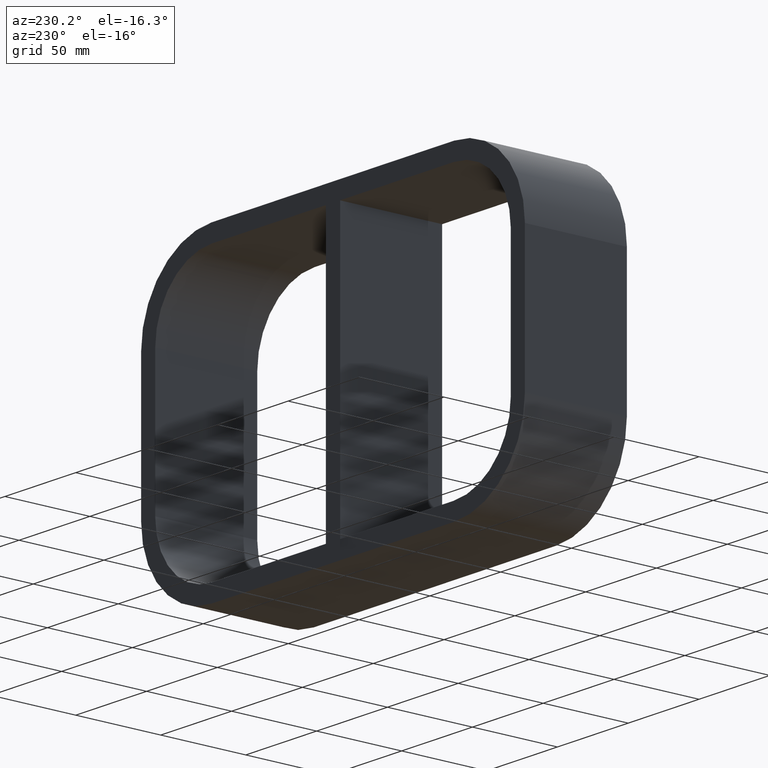
[diagram: clean part render]
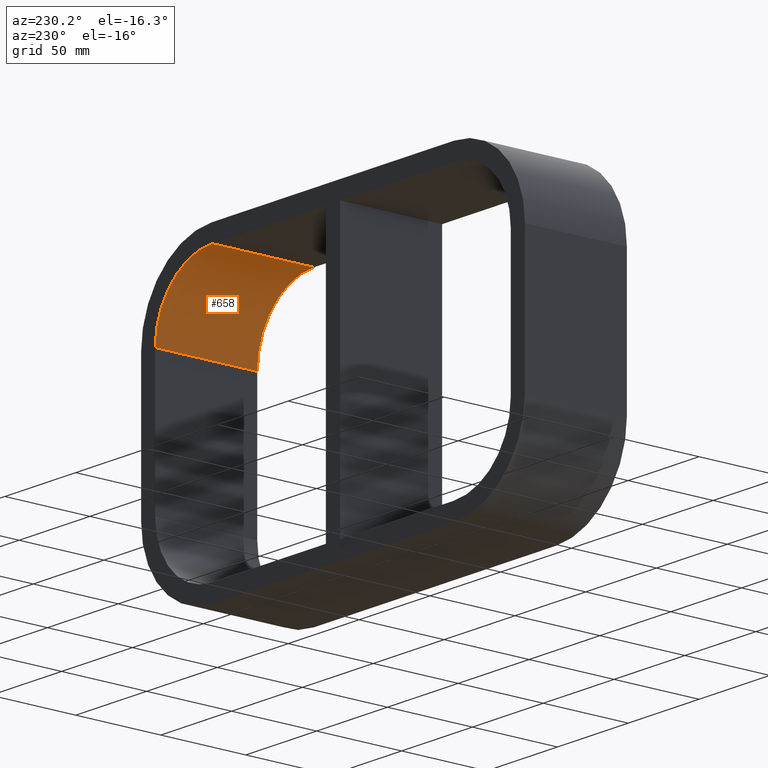
[diagram: same view with one face highlighted and labeled with its STEP entity id]
A machine part, auxiliary view. The second image highlights one B-rep face of the part: STEP entity #658.
In plain terms, the highlighted cylindrical surface (partial cylindrical patch) has radius 40 mm, axis along (0, 1, 0).
Its self-contained STEP definition (entity closure, byte-faithful):
#216=CARTESIAN_POINT('',(85.5,57.0,79.750000000000014));
#217=VERTEX_POINT('',#216);
#224=CARTESIAN_POINT('',(85.5,-3.0,79.750000000000014));
#225=VERTEX_POINT('',#224);
#226=CARTESIAN_POINT('',(85.5,-3.0,79.750000000000014));
#227=DIRECTION('',(0.0,1.0,0.0));
#228=VECTOR('',#227,60.0);
#229=LINE('',#226,#228);
#230=EDGE_CURVE('',#225,#217,#229,.T.);
#410=CARTESIAN_POINT('',(125.5,-3.0,39.750000000000014));
#411=VERTEX_POINT('',#410);
#412=CARTESIAN_POINT('',(85.5,-3.0,39.750000000000014));
#413=DIRECTION('',(0.0,-1.0,0.0));
#414=DIRECTION('',(0.707106781186547,0.0,0.707106781186547));
#415=AXIS2_PLACEMENT_3D('',#412,#413,#414);
#416=CIRCLE('',#415,39.999999999999993);
#417=EDGE_CURVE('',#411,#225,#416,.T.);
#634=CARTESIAN_POINT('',(85.5,0.0,39.750000000000014));
#635=DIRECTION('',(0.0,1.0,0.0));
#636=DIRECTION('',(0.707106781186547,0.0,0.707106781186547));
#637=AXIS2_PLACEMENT_3D('',#634,#635,#636);
#638=CYLINDRICAL_SURFACE('',#637,40.0);
#639=ORIENTED_EDGE('',*,*,#417,.T.);
#640=ORIENTED_EDGE('',*,*,#230,.T.);
#641=CARTESIAN_POINT('',(125.5,57.0,39.750000000000014));
#642=VERTEX_POINT('',#641);
#643=CARTESIAN_POINT('',(85.5,57.0,39.750000000000014));
#644=DIRECTION('',(0.0,1.0,0.0));
#645=DIRECTION('',(0.707106781186547,0.0,0.707106781186547));
#646=AXIS2_PLACEMENT_3D('',#643,#644,#645);
#647=CIRCLE('',#646,39.999999999999993);
#648=EDGE_CURVE('',#217,#642,#647,.T.);
#649=ORIENTED_EDGE('',*,*,#648,.T.);
#650=CARTESIAN_POINT('',(125.5,57.0,39.750000000000014));
#651=DIRECTION('',(0.0,-1.0,0.0));
#652=VECTOR('',#651,60.0);
#653=LINE('',#650,#652);
#654=EDGE_CURVE('',#642,#411,#653,.T.);
#655=ORIENTED_EDGE('',*,*,#654,.T.);
#656=EDGE_LOOP('',(#639,#640,#649,#655));
#657=FACE_OUTER_BOUND('',#656,.T.);
#658=ADVANCED_FACE('',(#657),#638,.F.);